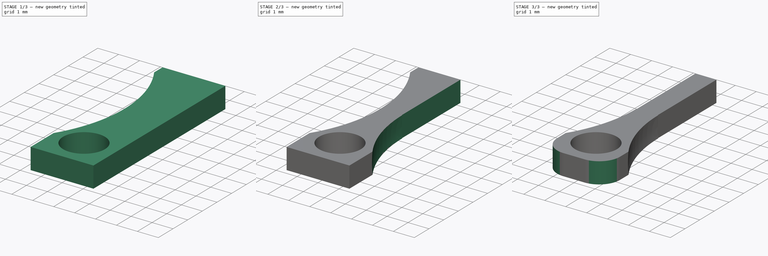
[diagram: build sequence overview — one tinted view per stage of 3, left to right]
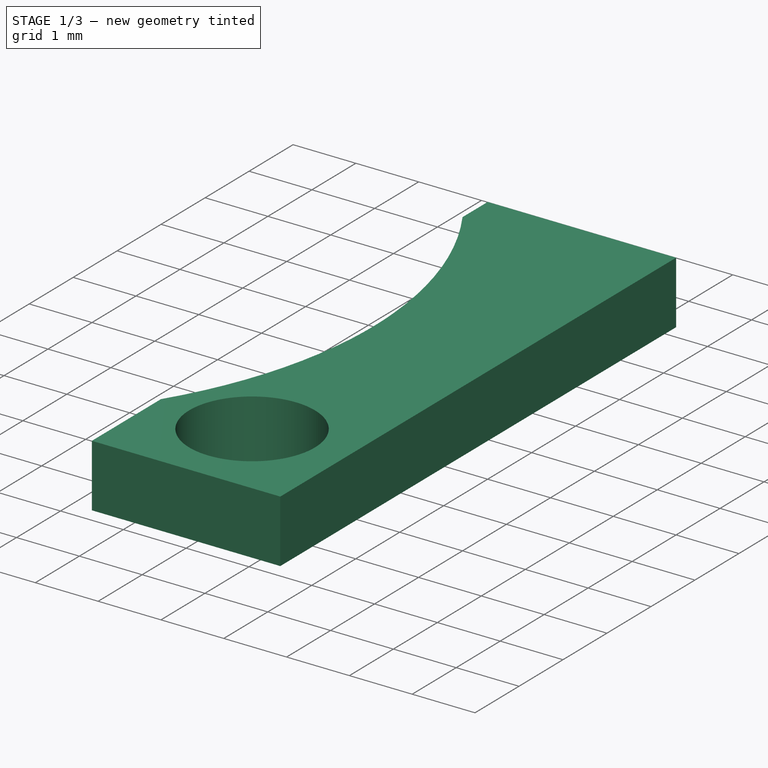
[diagram: stage 1 of 3 — iso view after this stage's code; geometry added in this stage tinted green]
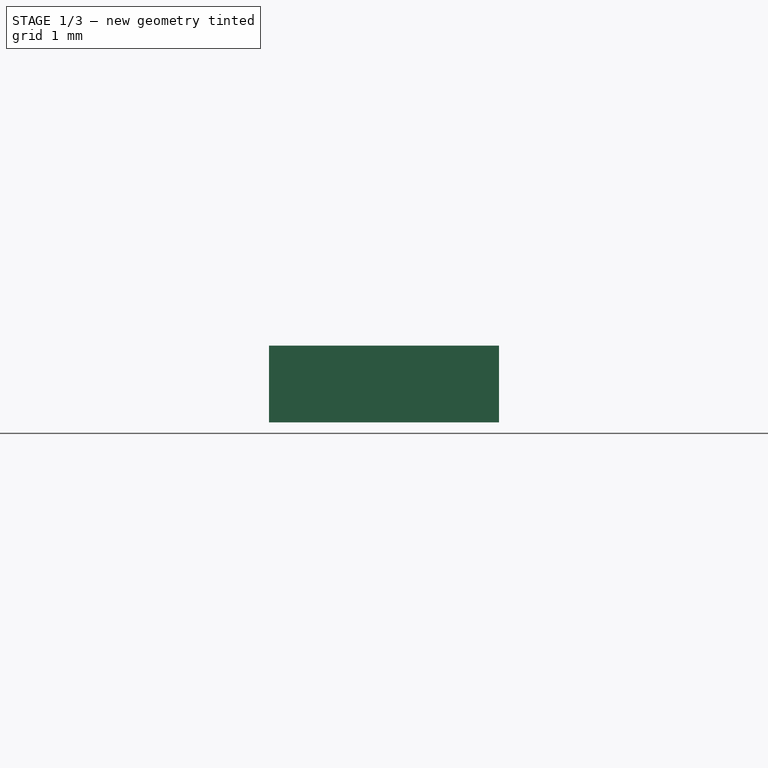
[diagram: stage 1 of 3 — front view after this stage's code; geometry added in this stage tinted green]
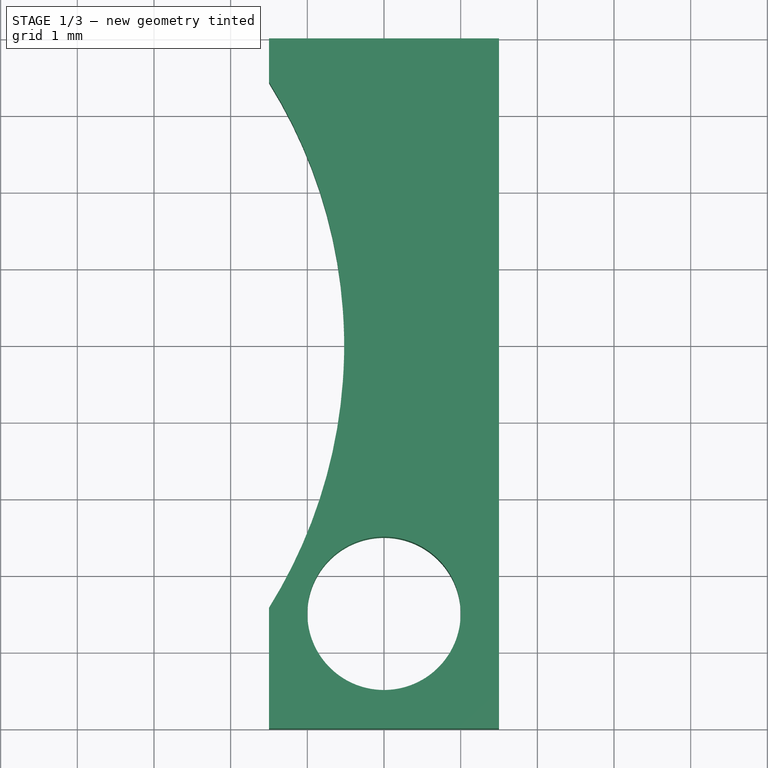
[diagram: stage 1 of 3 — top view after this stage's code; geometry added in this stage tinted green]
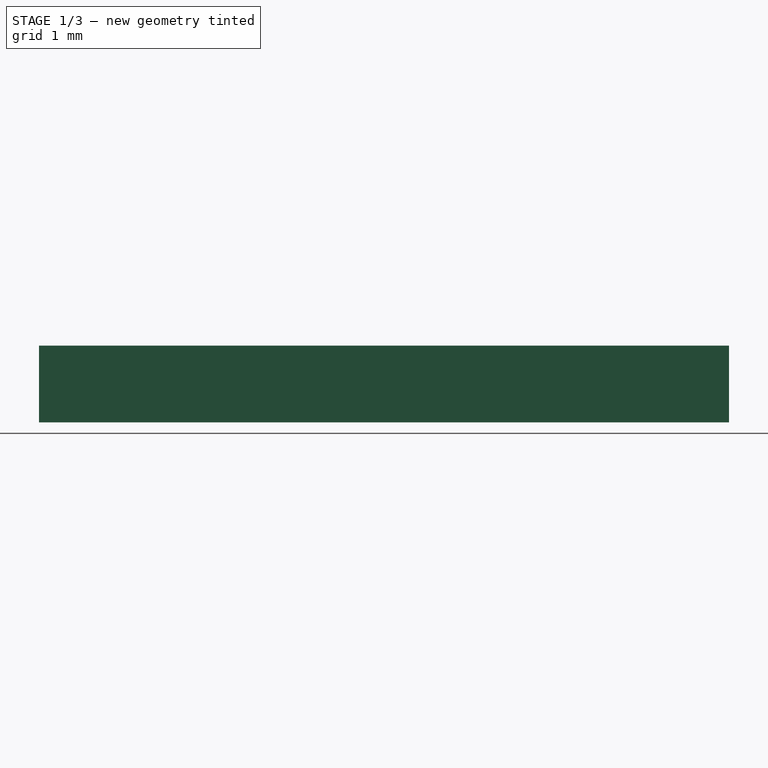
[diagram: stage 1 of 3 — right view after this stage's code; geometry added in this stage tinted green]
FCSTD DOCUMENT  (FreeCAD 0.17R13528 (Git))
Label: kolben
License: All rights reserved
LicenseURL: http://en.wikipedia.org/wiki/All_rights_reserved
objects: Sketcher::SketchObject×2, PartDesign::Pocket×2, PartDesign::Mirrored×2, PartDesign::AdditiveBox×1, PartDesign::SubtractiveSphere×1, PartDesign::SubtractiveBox×1, PartDesign::Fillet×1, PartDesign::Body×1
note: 16 computed .brp shape members not serialized (recipe doc carries the construction recipe); baked Part::Feature solids carry a one-line shape summary decoded from their .brp

FEATURE [PartDesign::AdditiveBox] Box
  AttacherType = Attacher::AttachEngine3D
  AttachmentOffset = pos=(-1.5,0,-0.5) rot=(0,0,1;0rad)
  Height = 1
  Length = 3
  MapMode = 5
  Placement = pos=(-1.5,0,-0.5) rot=(0,0,1;0rad)
  Support = -> [XY_Plane]
  Width = 9
FEATURE [Sketcher::SketchObject] Sketch
  MapMode = 5
  Support = -> [XY_Plane]
  sketch-geometry (1):
    g0: Circle CenterX=0 CenterY=1.5 CenterZ=0 NormalX=0 NormalY=0 NormalZ=1 AngleXU=0 Radius=1
  constraints (3):
    c: Radius(g0) = 1
    c: DistanceY(g-1,g0) = 1.5
    c: DistanceX(g0,g-1) = 0
FEATURE [PartDesign::Pocket] Pocket
  BaseFeature = -> Box
  Length = 6
  Length2 = 100
  Midplane = true
  Placement = pos=(-1.5,0,-0.5) rot=(0,0,1;0rad)
  Profile = -> Sketch
  Type = 0
FEATURE [PartDesign::SubtractiveSphere] Sphere
  Angle1 = -90
  Angle2 = 90
  Angle3 = 360
  AttacherType = Attacher::AttachEngine3D
  AttachmentOffset = pos=(5,0,-7) rot=(0,0,1;0rad)
  BaseFeature = -> Pocket
  MapMode = 5
  Placement = pos=(-7,5,-1e-12) rot=(0.57735,0.57735,0.57735;2.0944rad)
  Radius = 6.5
  Support = -> [YZ_Plane]
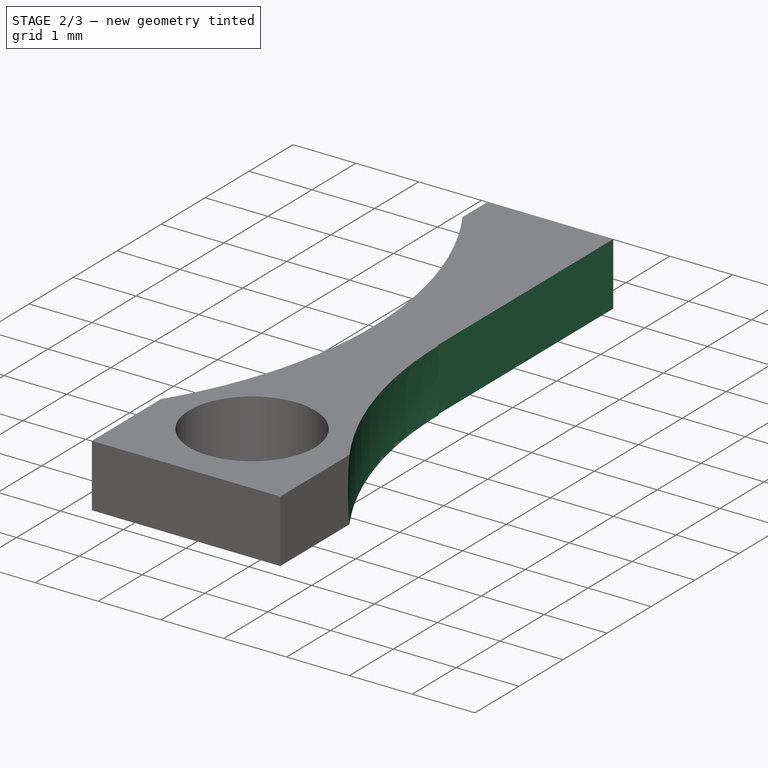
[diagram: stage 2 of 3 — iso view after this stage's code; geometry added in this stage tinted green]
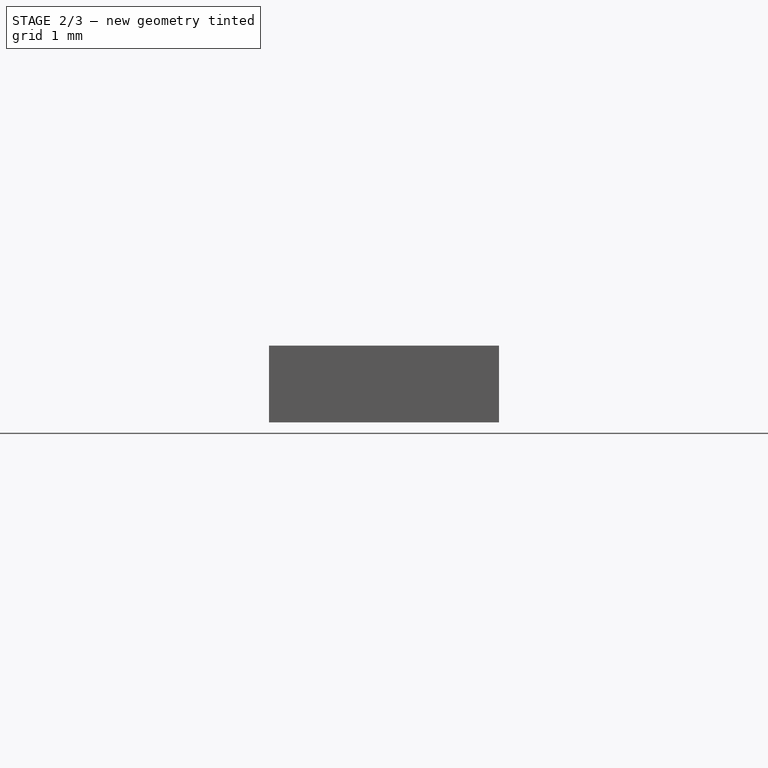
[diagram: stage 2 of 3 — front view after this stage's code; geometry added in this stage tinted green]
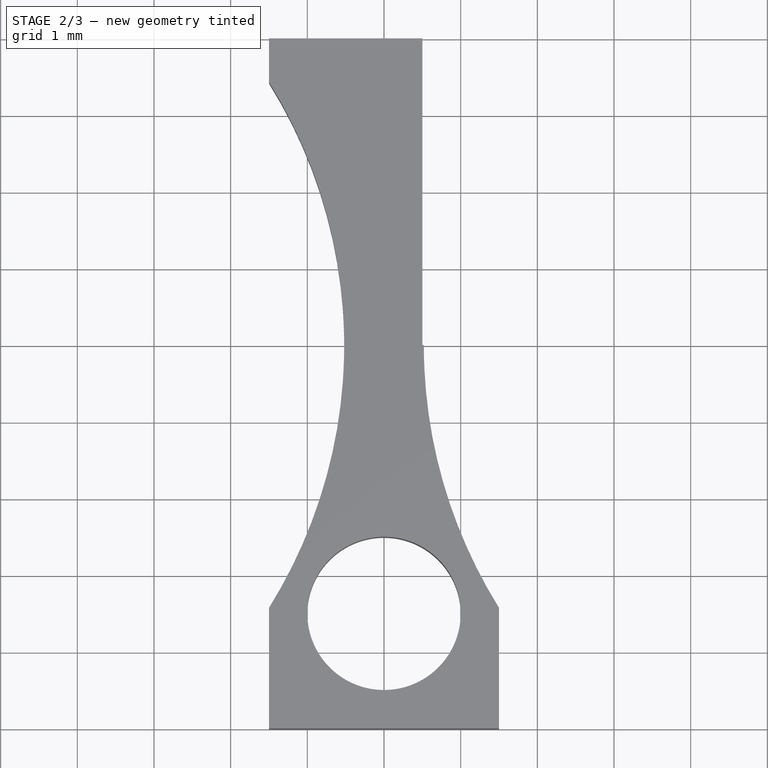
[diagram: stage 2 of 3 — top view after this stage's code; geometry added in this stage tinted green]
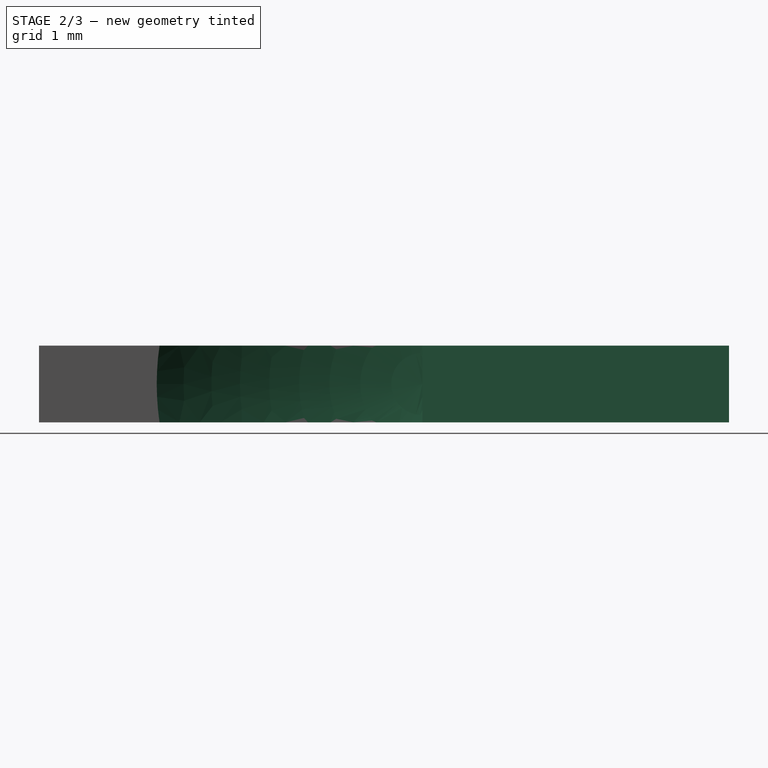
[diagram: stage 2 of 3 — right view after this stage's code; geometry added in this stage tinted green]
FEATURE [PartDesign::Mirrored] Mirrored
  BaseFeature = -> Sphere
  MirrorPlane = -> YZ_Plane
  Originals = -> [Sphere]
  Placement = pos=(-7,5,-1e-12) rot=(0.57735,0.57735,0.57735;2.0944rad)
FEATURE [PartDesign::SubtractiveBox] Box001
  AttacherType = Attacher::AttachEngine3D
  AttachmentOffset = pos=(0.5,5,-1) rot=(0,0,1;0rad)
  BaseFeature = -> Mirrored
  Height = 2
  Length = 2
  MapMode = 5
  Placement = pos=(0.5,5,-1) rot=(0,0,1;0rad)
  Support = -> [XY_Plane]
  Width = 4
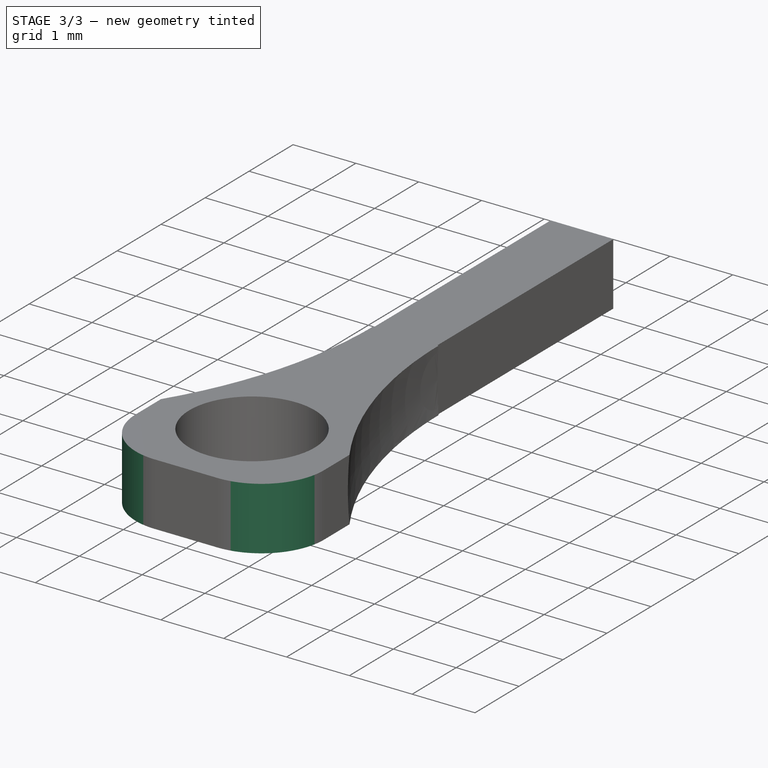
[diagram: stage 3 of 3 — iso view after this stage's code; geometry added in this stage tinted green]
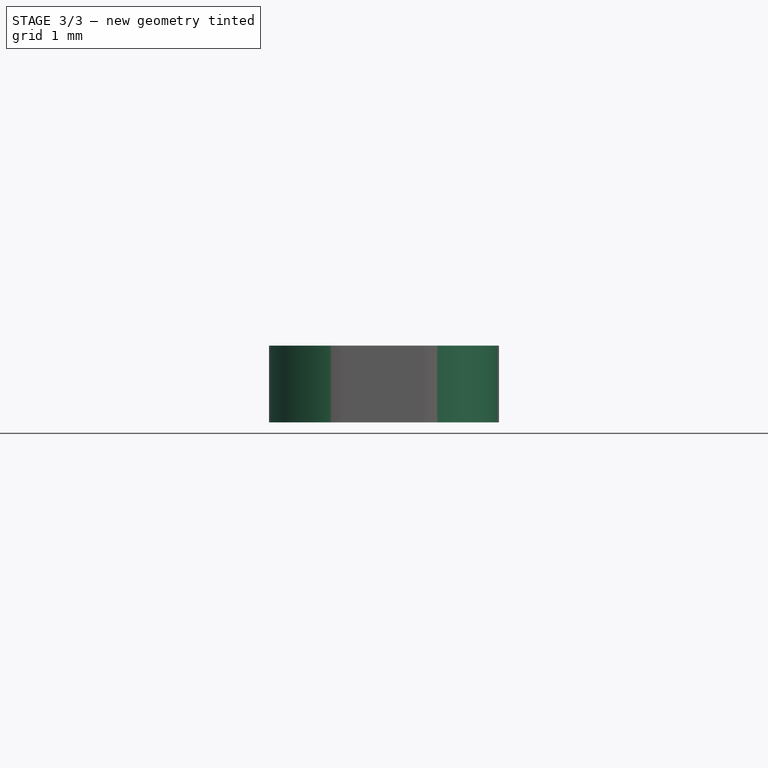
[diagram: stage 3 of 3 — front view after this stage's code; geometry added in this stage tinted green]
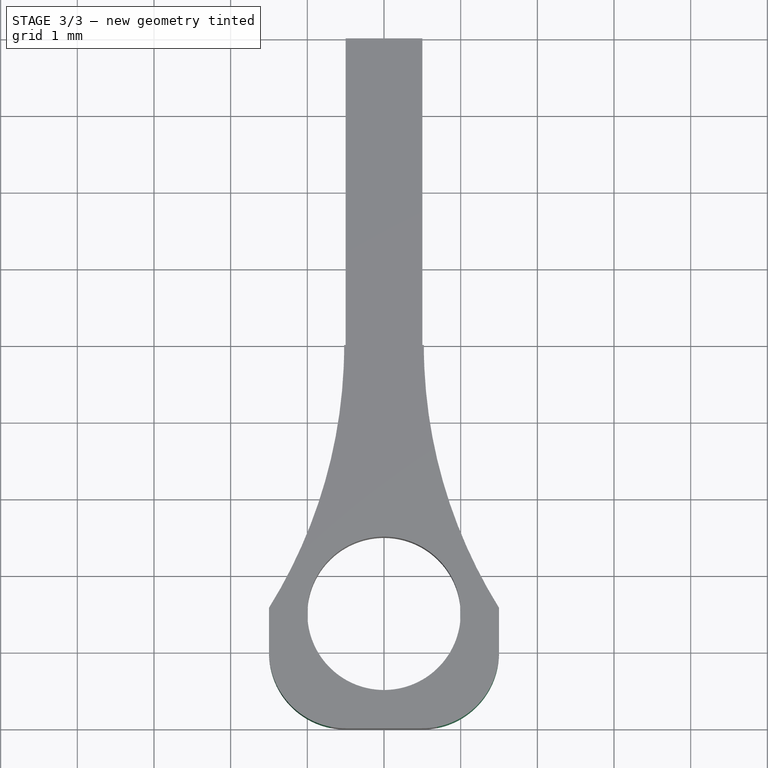
[diagram: stage 3 of 3 — top view after this stage's code; geometry added in this stage tinted green]
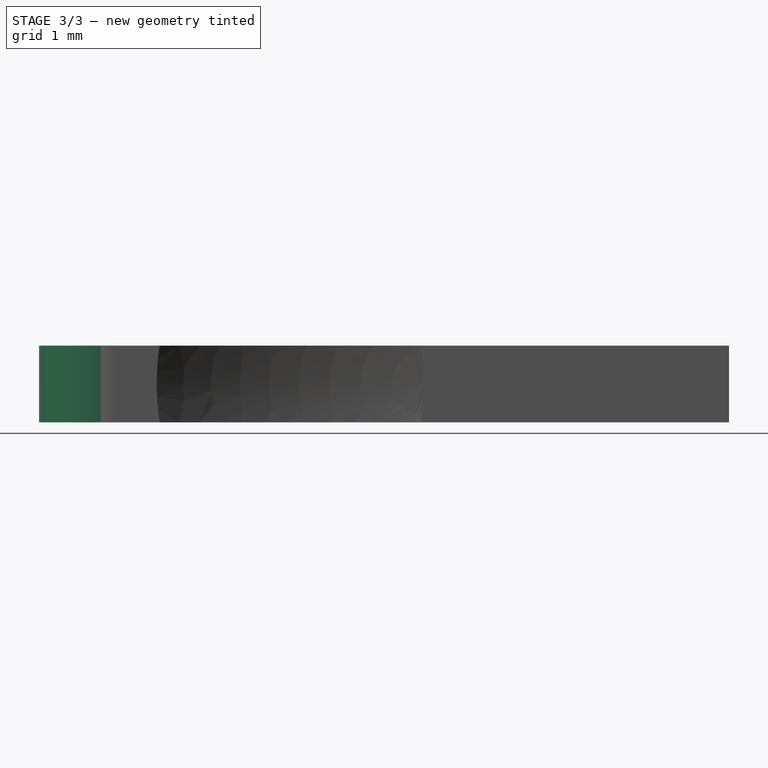
[diagram: stage 3 of 3 — right view after this stage's code; geometry added in this stage tinted green]
FEATURE [PartDesign::Mirrored] Mirrored001
  BaseFeature = -> Box001
  MirrorPlane = -> YZ_Plane
  Originals = -> [Box001]
  Placement = pos=(0.5,5,-1) rot=(0,0,1;0rad)
FEATURE [Sketcher::SketchObject] Sketch001
  MapMode = 5
  Placement = pos=(0.5,5,-0.5) rot=(1,0,0;3.14159rad)
  Support = -> [Mirrored001]
  sketch-geometry (4):
    g0: LineSegment StartX=-0.25 StartY=-3.9 StartZ=0 EndX=-0.75 EndY=-3.9 EndZ=0
    g1: LineSegment StartX=-0.75 StartY=-3.9 StartZ=0 EndX=-1 EndY=2.4 EndZ=0
    g2: LineSegment StartX=-1 StartY=2.4 StartZ=0 EndX=0 EndY=2.4 EndZ=0
    g3: LineSegment StartX=0 StartY=2.4 StartZ=0 EndX=-0.25 EndY=-3.9 EndZ=0
  constraints (12):
    c: Coincident(g0,g1)
    c: Coincident(g1,g2)
    c: Horizontal(g2)
    c: Coincident(g2,g3)
    c: Coincident(g3,g0)
    c: DistanceX(g0,g0) = 0.5
    c: DistanceX(g2,g2) = 1
    c: DistanceY(g0,g1) = 6.3
    c: DistanceX(g0,g-1) = 0.25
    c: DistanceX(g0,g2) = 0.25
    c: DistanceY(g0,g-1) = 3.9
    c: DistanceY(g0,g-1) = 3.9
FEATURE [PartDesign::Pocket] Pocket001
  BaseFeature = -> Mirrored001
  Length = 0.3
  Length2 = 100
  Midplane = true
  Placement = pos=(0.5,5,-1) rot=(0,0,1;0rad)
  Profile = -> Sketch001
  Type = 0
FEATURE [PartDesign::Fillet] Fillet
  Base = -> Pocket001 [Edge4,Edge32]
  BaseFeature = -> Pocket001
  Placement = pos=(0.5,5,-1) rot=(0,0,1;0rad)
  Radius = 1
FEATURE [PartDesign::Body] Body
  Group = -> [Box,Sketch,Pocket,Sphere,Mirrored,Box001,Mirrored001,Sketch001,Pocket001,Fillet]
  Origin = -> Origin
  Tip = -> Fillet
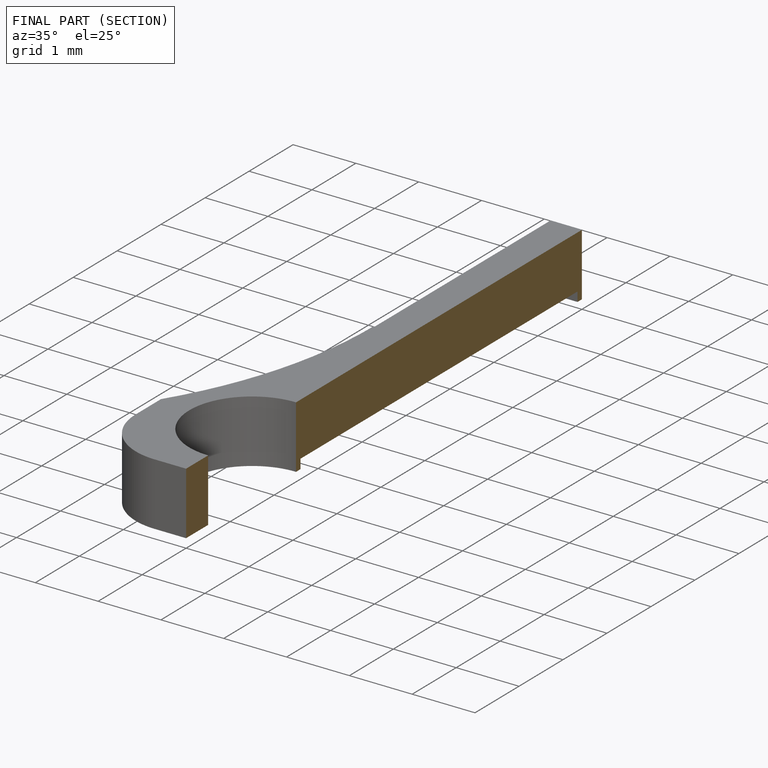
[diagram: finished part — half-section view (interior)]
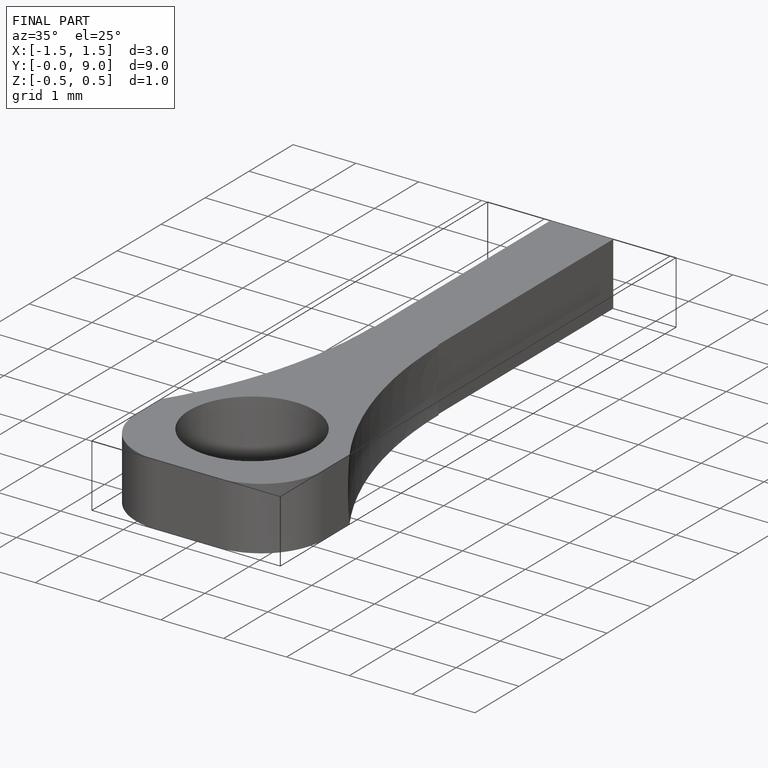
[diagram: finished part — iso view with bounding-box wireframe]
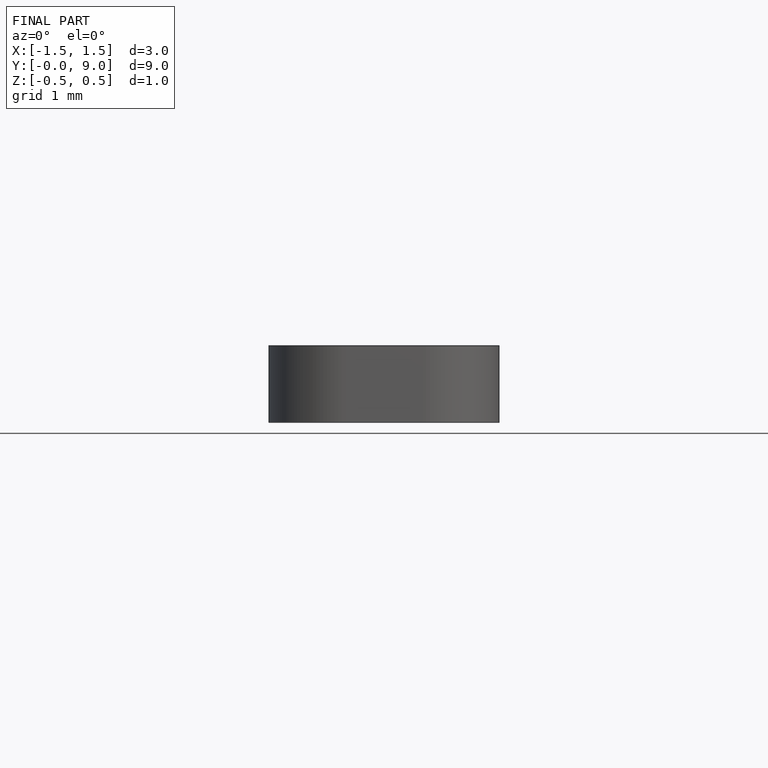
[diagram: finished part — front view with bounding-box wireframe]
